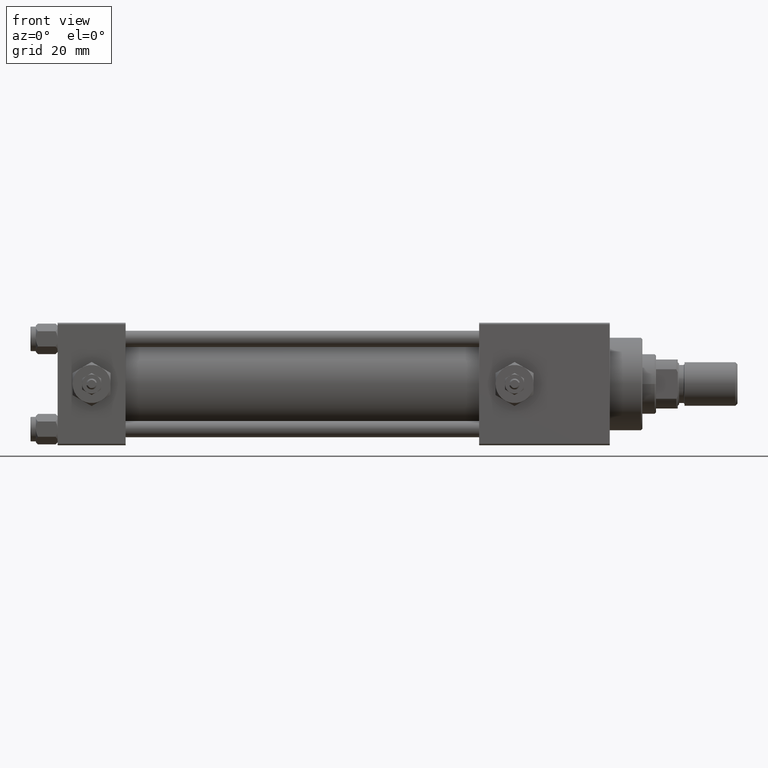
[diagram: clean part render]
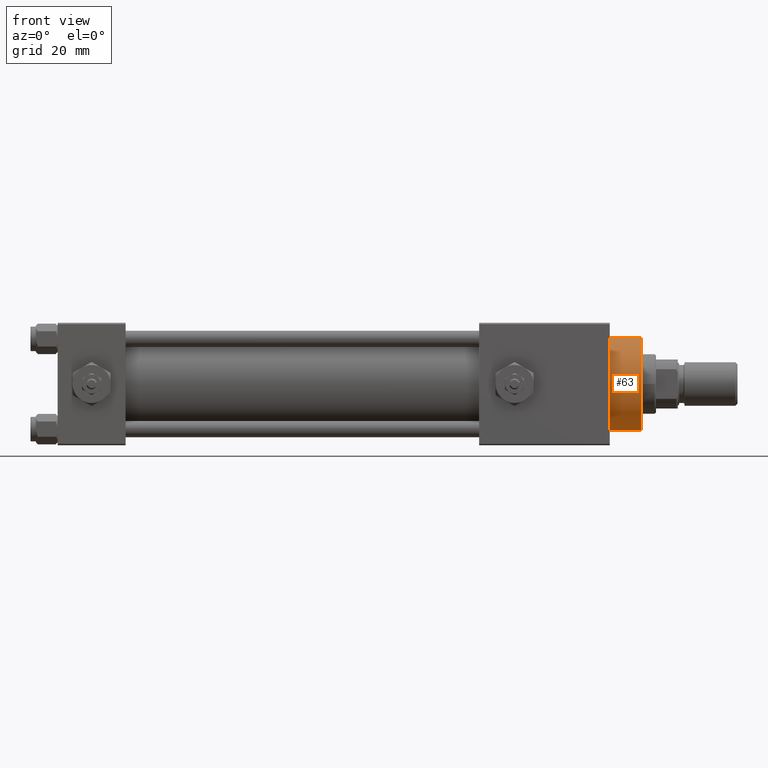
[diagram: same view with one face highlighted and labeled with its STEP entity id]
A machine part, front view. The second image highlights one B-rep face of the part: STEP entity #63.
In plain terms, the highlighted cylindrical surface (partial cylindrical patch) has radius 17 mm, axis along (-1, -0, -0).
Its self-contained STEP definition (entity closure, byte-faithful):
#63 = ADVANCED_FACE ( 'NONE', ( #458 ), #45186, .T. ) ;
#213 = ORIENTED_EDGE ( 'NONE', *, *, #36434, .T. ) ;
#458 = FACE_OUTER_BOUND ( 'NONE', #26142, .T. ) ;
#3635 = CARTESIAN_POINT ( 'NONE',  ( 0.000000000000000000, 0.000000000000000000, 40.19999999999999574 ) ) ;
#6768 = DIRECTION ( 'NONE',  ( -0.000000000000000000, -0.000000000000000000, -1.000000000000000000 ) ) ;
#7090 = VERTEX_POINT ( 'NONE', #30901 ) ;
#8215 = DIRECTION ( 'NONE',  ( 0.000000000000000000, 0.000000000000000000, 1.000000000000000000 ) ) ;
#9242 = DIRECTION ( 'NONE',  ( -0.000000000000000000, -0.000000000000000000, -1.000000000000000000 ) ) ;
#11141 = VERTEX_POINT ( 'NONE', #13430 ) ;
#11210 = CARTESIAN_POINT ( 'NONE',  ( 17.00000000000000000, 2.081899558550500280E-15, 40.70000000000000284 ) ) ;
#11471 = DIRECTION ( 'NONE',  ( -0.000000000000000000, -0.000000000000000000, -1.000000000000000000 ) ) ;
#12866 = EDGE_CURVE ( 'NONE', #30034, #7090, #21103, .T. ) ;
#12943 = DIRECTION ( 'NONE',  ( 1.000000000000000000, 0.000000000000000000, 0.000000000000000000 ) ) ;
#13159 = AXIS2_PLACEMENT_3D ( 'NONE', #52657, #8215, #45970 ) ;
#13430 = CARTESIAN_POINT ( 'NONE',  ( 17.00000000000000000, 2.081899558550500280E-15, 28.69999999999999929 ) ) ;
#17901 = EDGE_CURVE ( 'NONE', #7090, #21600, #23793, .T. ) ;
#18255 = ORIENTED_EDGE ( 'NONE', *, *, #48561, .F. ) ;
#21003 = CARTESIAN_POINT ( 'NONE',  ( -17.00000000000000000, 0.000000000000000000, 28.69999999999999929 ) ) ;
#21103 = CIRCLE ( 'NONE', #24527, 17.00000000000000000 ) ;
#21600 = VERTEX_POINT ( 'NONE', #21003 ) ;
#22783 = ORIENTED_EDGE ( 'NONE', *, *, #17901, .T. ) ;
#23793 = LINE ( 'NONE', #47753, #45124 ) ;
#24527 = AXIS2_PLACEMENT_3D ( 'NONE', #3635, #36895, #12943 ) ;
#26142 = EDGE_LOOP ( 'NONE', ( #18255, #28362, #22783, #213 ) ) ;
#28362 = ORIENTED_EDGE ( 'NONE', *, *, #12866, .T. ) ;
#28947 = DIRECTION ( 'NONE',  ( -1.000000000000000000, 0.000000000000000000, 0.000000000000000000 ) ) ;
#30034 = VERTEX_POINT ( 'NONE', #47497 ) ;
#30147 = AXIS2_PLACEMENT_3D ( 'NONE', #45954, #9242, #28947 ) ;
#30901 = CARTESIAN_POINT ( 'NONE',  ( -17.00000000000000000, 0.000000000000000000, 40.19999999999999574 ) ) ;
#32203 = VECTOR ( 'NONE', #11471, 1000.000000000000000 ) ;
#36434 = EDGE_CURVE ( 'NONE', #21600, #11141, #49701, .T. ) ;
#36895 = DIRECTION ( 'NONE',  ( 0.000000000000000000, 0.000000000000000000, -1.000000000000000000 ) ) ;
#45124 = VECTOR ( 'NONE', #6768, 1000.000000000000000 ) ;
#45186 = CYLINDRICAL_SURFACE ( 'NONE', #30147, 17.00000000000000000 ) ;
#45954 = CARTESIAN_POINT ( 'NONE',  ( 0.000000000000000000, 0.000000000000000000, 40.70000000000000284 ) ) ;
#45970 = DIRECTION ( 'NONE',  ( 1.000000000000000000, 0.000000000000000000, 0.000000000000000000 ) ) ;
#47497 = CARTESIAN_POINT ( 'NONE',  ( 17.00000000000000000, 2.081899558550500280E-15, 40.19999999999999574 ) ) ;
#47753 = CARTESIAN_POINT ( 'NONE',  ( -17.00000000000000000, 0.000000000000000000, 40.70000000000000284 ) ) ;
#48198 = LINE ( 'NONE', #11210, #32203 ) ;
#48561 = EDGE_CURVE ( 'NONE', #30034, #11141, #48198, .T. ) ;
#49701 = CIRCLE ( 'NONE', #13159, 17.00000000000000000 ) ;
#52657 = CARTESIAN_POINT ( 'NONE',  ( 0.000000000000000000, 0.000000000000000000, 28.69999999999999929 ) ) ;